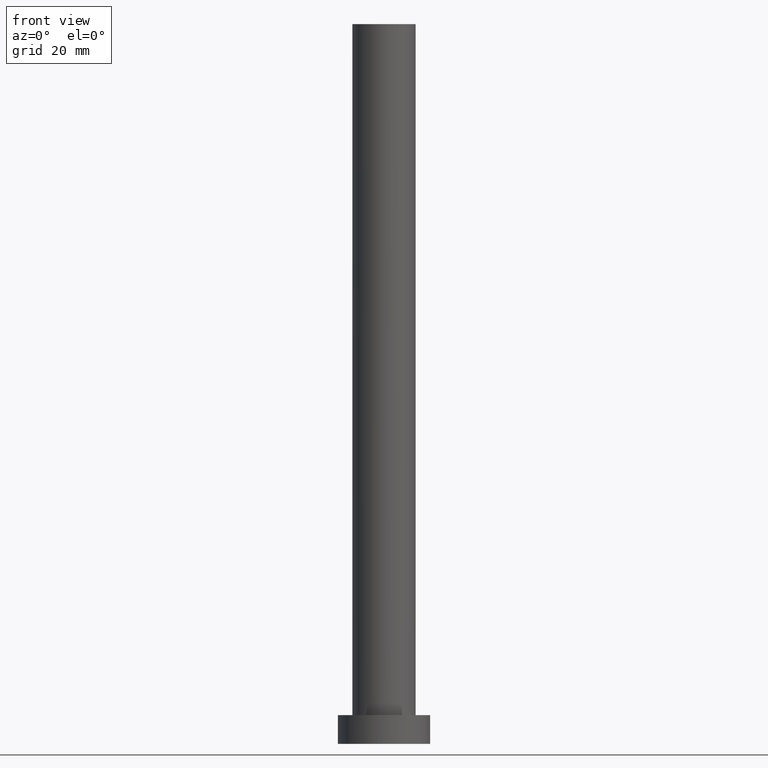
[diagram: clean part render]
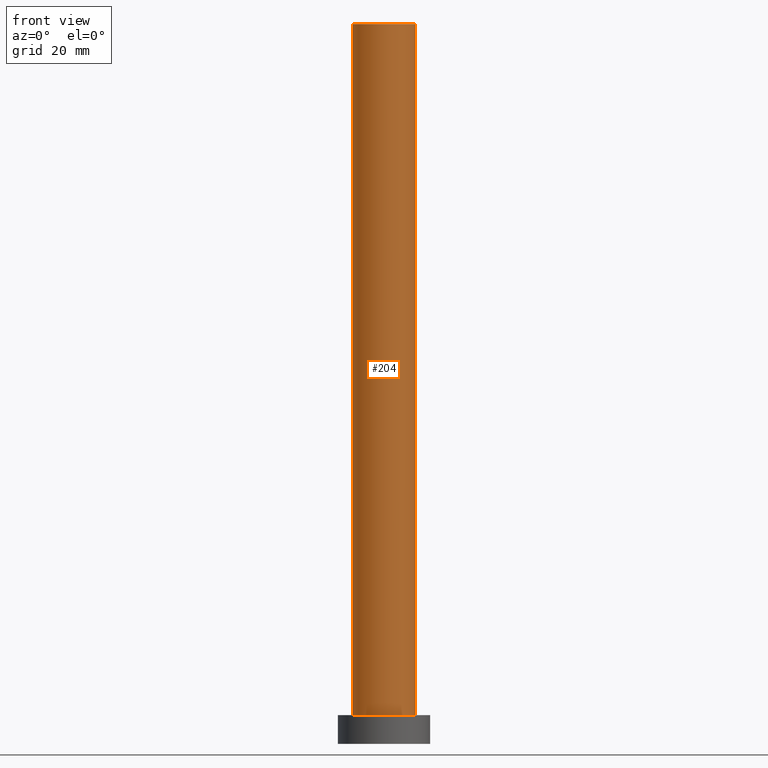
[diagram: same view with one face highlighted and labeled with its STEP entity id]
A machine part, front view. The second image highlights one B-rep face of the part: STEP entity #204.
In plain terms, the highlighted cylindrical surface (edge-blend (fillet) strip) has radius 5.5 mm, axis along (-0, -0, -1).
Its self-contained STEP definition (entity closure, byte-faithful):
#2 = VECTOR ( 'NONE', #22, 1000.000000000000000 ) ;
#4 = EDGE_CURVE ( 'NONE', #249, #124, #133, .T. ) ;
#18 = CARTESIAN_POINT ( 'NONE',  ( 0.000000000000000000, 0.000000000000000000, 5.000000000000000000 ) ) ;
#22 = DIRECTION ( 'NONE',  ( -0.000000000000000000, -0.000000000000000000, -1.000000000000000000 ) ) ;
#23 = ORIENTED_EDGE ( 'NONE', *, *, #213, .F. ) ;
#26 = DIRECTION ( 'NONE',  ( 1.000000000000000000, 0.000000000000000000, 0.000000000000000000 ) ) ;
#30 = DIRECTION ( 'NONE',  ( 0.000000000000000000, 0.000000000000000000, 1.000000000000000000 ) ) ;
#34 = AXIS2_PLACEMENT_3D ( 'NONE', #206, #30, #26 ) ;
#41 = AXIS2_PLACEMENT_3D ( 'NONE', #99, #58, #46 ) ;
#46 = DIRECTION ( 'NONE',  ( -1.000000000000000000, 0.000000000000000000, 0.000000000000000000 ) ) ;
#58 = DIRECTION ( 'NONE',  ( -0.000000000000000000, -0.000000000000000000, -1.000000000000000000 ) ) ;
#77 = LINE ( 'NONE', #205, #2 ) ;
#99 = CARTESIAN_POINT ( 'NONE',  ( 0.000000000000000000, 0.000000000000000000, 125.0000000000000000 ) ) ;
#119 = EDGE_LOOP ( 'NONE', ( #23, #144, #169, #156 ) ) ;
#121 = VERTEX_POINT ( 'NONE', #218 ) ;
#123 = LINE ( 'NONE', #208, #135 ) ;
#124 = VERTEX_POINT ( 'NONE', #176 ) ;
#133 = CIRCLE ( 'NONE', #34, 5.500000000000000000 ) ;
#135 = VECTOR ( 'NONE', #229, 1000.000000000000000 ) ;
#144 = ORIENTED_EDGE ( 'NONE', *, *, #4, .F. ) ;
#156 = ORIENTED_EDGE ( 'NONE', *, *, #183, .T. ) ;
#169 = ORIENTED_EDGE ( 'NONE', *, *, #193, .T. ) ;
#172 = CIRCLE ( 'NONE', #217, 5.500000000000000000 ) ;
#176 = CARTESIAN_POINT ( 'NONE',  ( 5.500000000000000000, 6.735557395310442023E-16, 125.0000000000000000 ) ) ;
#183 = EDGE_CURVE ( 'NONE', #121, #252, #172, .T. ) ;
#193 = EDGE_CURVE ( 'NONE', #249, #121, #123, .T. ) ;
#197 = CYLINDRICAL_SURFACE ( 'NONE', #41, 5.500000000000000000 ) ;
#198 = FACE_OUTER_BOUND ( 'NONE', #119, .T. ) ;
#200 = CARTESIAN_POINT ( 'NONE',  ( -5.500000000000000000, 0.000000000000000000, 125.0000000000000000 ) ) ;
#204 = ADVANCED_FACE ( 'NONE', ( #198 ), #197, .T. ) ;
#205 = CARTESIAN_POINT ( 'NONE',  ( 5.500000000000000000, 6.735557395310442023E-16, 125.0000000000000000 ) ) ;
#206 = CARTESIAN_POINT ( 'NONE',  ( 0.000000000000000000, 0.000000000000000000, 125.0000000000000000 ) ) ;
#208 = CARTESIAN_POINT ( 'NONE',  ( -5.500000000000000000, 0.000000000000000000, 125.0000000000000000 ) ) ;
#209 = CARTESIAN_POINT ( 'NONE',  ( 5.500000000000000000, 6.735557395310442023E-16, 5.000000000000000000 ) ) ;
#213 = EDGE_CURVE ( 'NONE', #124, #252, #77, .T. ) ;
#217 = AXIS2_PLACEMENT_3D ( 'NONE', #18, #245, #226 ) ;
#218 = CARTESIAN_POINT ( 'NONE',  ( -5.500000000000000000, 0.000000000000000000, 5.000000000000000000 ) ) ;
#226 = DIRECTION ( 'NONE',  ( 1.000000000000000000, 0.000000000000000000, 0.000000000000000000 ) ) ;
#229 = DIRECTION ( 'NONE',  ( -0.000000000000000000, -0.000000000000000000, -1.000000000000000000 ) ) ;
#245 = DIRECTION ( 'NONE',  ( 0.000000000000000000, 0.000000000000000000, 1.000000000000000000 ) ) ;
#249 = VERTEX_POINT ( 'NONE', #200 ) ;
#252 = VERTEX_POINT ( 'NONE', #209 ) ;